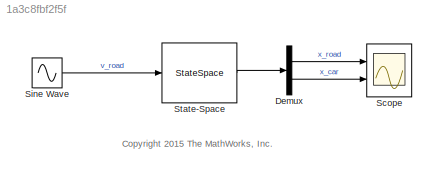
MODEL slx_1a3c8fbf2f5f
KIND model
CONFIG AbsTol = auto
CONFIG FixedStep = auto
CONFIG MaxStep = auto
CONFIG MinStep = auto
CONFIG PreLoadFcn = load carParams;\n\nA = [0 1 0 0 0; ...\n       -k1/mCar -b1/mCar k1/mCar b1/mCar 0; ...\n       0 0 0 1 0; ...\n       k1/mWheel b1/mWheel -(k1+k2)/mWheel -(b1+b2)/mWheel k2/mWheel; ...\n       0 0 0 0 0];\nB = [0;0;0;b2/mWheel;1]/100;\nC = [0 0 0 0 1;1 0 0 0 0]*100;\nD = [0;0];
CONFIG RelTol = 1e-3
CONFIG SampleTimeConstraint = Unconstrained
CONFIG Solver = ode23t
CONFIG SolverMode = Auto
CONFIG SolverName = ode23t
CONFIG StartTime = 0.0
CONFIG StopTime = 10
BLOCK [Demux] Demux
  DisplayOption = bar
  Outputs = 2
  Ports = [1, 2]
BLOCK [Scope] Scope
  Floating = off
  LimitDataPoints = off
  NumInputPorts = 2
  Ports = [2]
  TimeRange = 10
  YMax = 4~0.2
  YMin = -4~-0.2
  ZoomMode = xonly
BLOCK [Sin] Sine Wave
  Amplitude = 250
  Frequency = 100
  Phase = pi/2
  Ports = [0, 1]
  SampleTime = 0
BLOCK [StateSpace] State-Space
  A = A
  B = B
  C = C
  D = D
  Ports = [1, 1]
  X0 = 0
ANNOTATION (root): <copyright redacted>
LINE Demux:1 -> Scope:1
LINE Demux:2 -> Scope:2
LINE Sine Wave:1 -> State-Space:1
LINE State-Space:1 -> Demux:1
